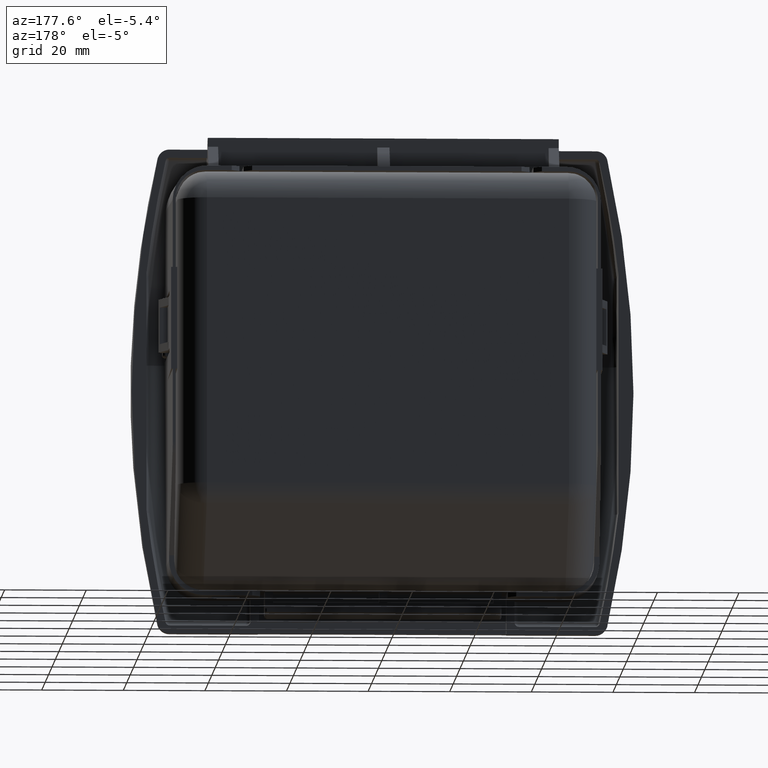
[diagram: clean part render]
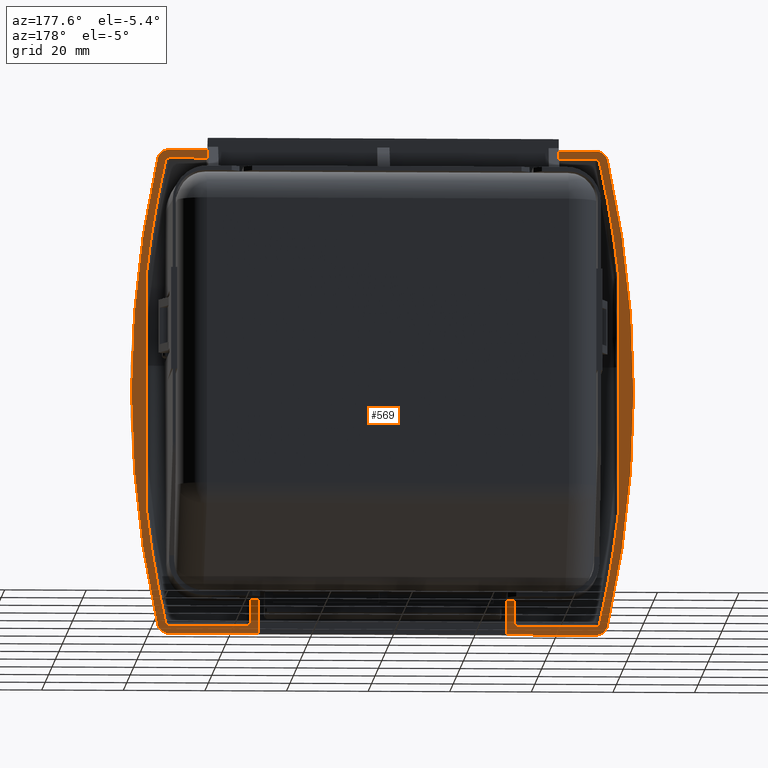
[diagram: same view with one face highlighted and labeled with its STEP entity id]
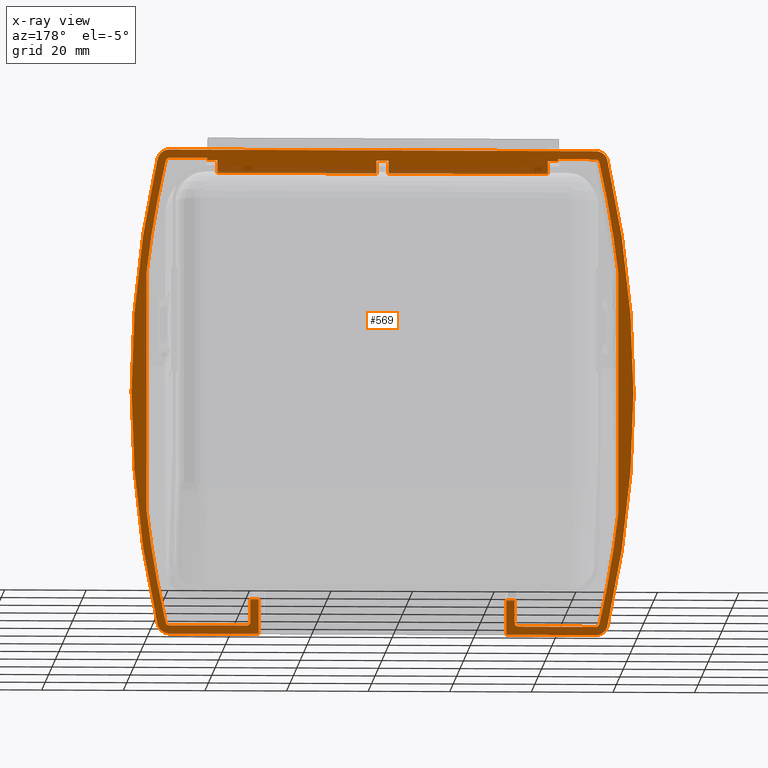
[diagram: x-ray of the same camera — body ghosted, the highlighted face saturated]
A machine part, auxiliary view. The second image highlights one B-rep face of the part: STEP entity #569.
The next image is the same camera in x-ray: the body ghosted, the highlighted face saturated — about 12% of this face is hidden behind the body in this view.
In plain terms, the highlighted planar face has unit normal (0, 1, 0).
Its self-contained STEP definition (entity closure, byte-faithful):
#569=ADVANCED_FACE('',(#5068),#5067,.T.);
#5067=PLANE('',#11109);
#5068=FACE_OUTER_BOUND('',#11110,.T.);
#11106=CARTESIAN_POINT('',(-2.76599449003E+002,0.00000000000E+000,-6.95000000000E+001));
#11107=DIRECTION('',(0.00000000000E+000,1.00000000000E+000,0.00000000000E+000));
#11108=DIRECTION('',(0.00000000000E+000,-0.00000000000E+000,1.00000000000E+000));
#11109=AXIS2_PLACEMENT_3D('',#11106,#11107,#11108);
#11110=EDGE_LOOP('',(#17176,#17177,#17178,#17179,#17180,#17181,#17182,#17183,#17184,#17185,#17186,#17187,#17188,#17189,#17190,#17191,#17192,#17193,#17194,#17195,#17196,#17197,#17198,#17199,#17200,#17201,#17202,#17203,#17204,#17205,#17206,#17207,#17208,#17209,#17210,#17211,#17212,#17213,#17214,#17215,#17216,#17217,#17218,#17219,#17220,#17221));
#17176=ORIENTED_EDGE('',*,*,#19124,.T.);
#17177=ORIENTED_EDGE('',*,*,#19389,.T.);
#17178=ORIENTED_EDGE('',*,*,#19119,.F.);
#17179=ORIENTED_EDGE('',*,*,#19152,.T.);
#17180=ORIENTED_EDGE('',*,*,#19817,.F.);
#17181=ORIENTED_EDGE('',*,*,#19818,.F.);
#17182=ORIENTED_EDGE('',*,*,#19400,.T.);
#17183=ORIENTED_EDGE('',*,*,#19415,.F.);
#17184=ORIENTED_EDGE('',*,*,#19804,.F.);
#17185=ORIENTED_EDGE('',*,*,#19819,.T.);
#17186=ORIENTED_EDGE('',*,*,#19820,.F.);
#17187=ORIENTED_EDGE('',*,*,#19404,.T.);
#17188=ORIENTED_EDGE('',*,*,#19782,.F.);
#17189=ORIENTED_EDGE('',*,*,#19369,.T.);
#17190=ORIENTED_EDGE('',*,*,#19780,.F.);
#17191=ORIENTED_EDGE('',*,*,#19783,.F.);
#17192=ORIENTED_EDGE('',*,*,#19289,.F.);
#17193=ORIENTED_EDGE('',*,*,#19388,.T.);
#17194=ORIENTED_EDGE('',*,*,#19784,.F.);
#17195=ORIENTED_EDGE('',*,*,#19395,.T.);
#17196=ORIENTED_EDGE('',*,*,#19800,.F.);
#17197=ORIENTED_EDGE('',*,*,#19791,.T.);
#17198=ORIENTED_EDGE('',*,*,#19786,.T.);
#17199=ORIENTED_EDGE('',*,*,#19531,.F.);
#17200=ORIENTED_EDGE('',*,*,#19509,.T.);
#17201=ORIENTED_EDGE('',*,*,#19529,.F.);
#17202=ORIENTED_EDGE('',*,*,#19821,.T.);
#17203=ORIENTED_EDGE('',*,*,#19464,.F.);
#17204=ORIENTED_EDGE('',*,*,#19680,.T.);
#17205=ORIENTED_EDGE('',*,*,#19822,.T.);
#17206=ORIENTED_EDGE('',*,*,#19823,.T.);
#17207=ORIENTED_EDGE('',*,*,#19711,.F.);
#17208=ORIENTED_EDGE('',*,*,#19824,.T.);
#17209=ORIENTED_EDGE('',*,*,#19522,.F.);
#17210=ORIENTED_EDGE('',*,*,#19500,.T.);
#17211=ORIENTED_EDGE('',*,*,#19739,.F.);
#17212=ORIENTED_EDGE('',*,*,#19504,.T.);
#17213=ORIENTED_EDGE('',*,*,#19758,.T.);
#17214=ORIENTED_EDGE('',*,*,#19525,.F.);
#17215=ORIENTED_EDGE('',*,*,#19757,.T.);
#17216=ORIENTED_EDGE('',*,*,#19761,.T.);
#17217=ORIENTED_EDGE('',*,*,#19563,.F.);
#17218=ORIENTED_EDGE('',*,*,#19554,.T.);
#17219=ORIENTED_EDGE('',*,*,#19471,.F.);
#17220=ORIENTED_EDGE('',*,*,#19557,.F.);
#17221=ORIENTED_EDGE('',*,*,#19825,.T.);
#19119=EDGE_CURVE('',#23761,#23768,#23769,.T.);
#19124=EDGE_CURVE('',#23802,#23795,#23803,.T.);
#19152=EDGE_CURVE('',#23761,#23992,#23993,.T.);
#19289=EDGE_CURVE('',#24896,#24903,#24904,.T.);
#19369=EDGE_CURVE('',#25442,#25443,#25444,.T.);
#19388=EDGE_CURVE('',#24896,#25563,#25570,.T.);
#19389=EDGE_CURVE('',#23795,#23768,#25576,.T.);
#19395=EDGE_CURVE('',#25617,#25610,#25618,.T.);
#19400=EDGE_CURVE('',#25631,#25645,#25652,.T.);
#19404=EDGE_CURVE('',#25659,#25673,#25680,.T.);
#19415=EDGE_CURVE('',#25745,#25645,#25752,.T.);
#19464=EDGE_CURVE('',#26064,#26071,#26072,.T.);
#19471=EDGE_CURVE('',#26112,#26119,#26120,.T.);
#19500=EDGE_CURVE('',#26317,#26318,#26319,.T.);
#19504=EDGE_CURVE('',#26345,#26337,#26346,.T.);
#19509=EDGE_CURVE('',#26379,#26372,#26380,.T.);
#19522=EDGE_CURVE('',#26317,#26462,#26463,.T.);
#19525=EDGE_CURVE('',#26475,#26482,#26483,.T.);
#19529=EDGE_CURVE('',#26503,#26372,#26510,.T.);
#19531=EDGE_CURVE('',#26379,#26522,#26523,.T.);
#19554=EDGE_CURVE('',#26674,#26119,#26675,.T.);
#19557=EDGE_CURVE('',#26687,#26112,#26694,.T.);
#19563=EDGE_CURVE('',#26674,#26732,#26733,.T.);
#19680=EDGE_CURVE('',#26064,#27506,#27513,.T.);
#19711=EDGE_CURVE('',#27712,#27713,#27714,.T.);
#19739=EDGE_CURVE('',#26345,#26318,#27892,.T.);
#19757=EDGE_CURVE('',#26475,#28000,#28007,.T.);
#19758=EDGE_CURVE('',#26337,#26482,#28013,.T.);
#19761=EDGE_CURVE('',#28000,#26732,#28032,.T.);
#19780=EDGE_CURVE('',#28155,#25443,#28156,.T.);
#19782=EDGE_CURVE('',#25442,#25673,#28168,.T.);
#19783=EDGE_CURVE('',#24903,#28155,#28174,.T.);
#19784=EDGE_CURVE('',#25617,#25563,#28180,.T.);
#19786=EDGE_CURVE('',#28192,#26522,#28193,.T.);
#19791=EDGE_CURVE('',#28225,#28192,#28226,.T.);
#19800=EDGE_CURVE('',#28225,#25610,#28283,.T.);
#19804=EDGE_CURVE('',#28303,#25745,#28310,.T.);
#19817=EDGE_CURVE('',#28393,#23992,#28394,.T.);
#19818=EDGE_CURVE('',#25631,#28393,#28400,.T.);
#19819=EDGE_CURVE('',#28303,#28406,#28407,.T.);
#19820=EDGE_CURVE('',#25659,#28406,#28413,.T.);
#19821=EDGE_CURVE('',#26503,#26071,#28419,.T.);
#19822=EDGE_CURVE('',#27506,#28425,#28426,.T.);
#19823=EDGE_CURVE('',#28425,#27713,#28432,.T.);
#19824=EDGE_CURVE('',#27712,#26462,#28438,.T.);
#19825=EDGE_CURVE('',#26687,#23802,#28444,.T.);
#23761=VERTEX_POINT('',#34269);
#23768=VERTEX_POINT('',#34273);
#23769=LINE('',#34274,#34275);
#23795=VERTEX_POINT('',#34290);
#23802=VERTEX_POINT('',#34295);
#23803=LINE('',#34296,#34297);
#23992=VERTEX_POINT('',#34405);
#23993=LINE('',#34406,#34407);
#24896=VERTEX_POINT('',#34906);
#24903=VERTEX_POINT('',#34910);
#24904=LINE('',#34911,#34912);
#25442=VERTEX_POINT('',#35238);
#25443=VERTEX_POINT('',#35239);
#25444=CIRCLE('',#35243,1.00000000000E+000);
#25563=VERTEX_POINT('',#35323);
#25570=(BOUNDED_CURVE() B_SPLINE_CURVE(2,(#35327,#35328,#35329),.UNSPECIFIED.,.F.,.F.) B_SPLINE_CURVE_WITH_KNOTS((3,3),(4.71238898038E+000,5.94040941946E+000),.UNSPECIFIED.) CURVE() GEOMETRIC_REPRESENTATION_ITEM() RATIONAL_B_SPLINE_CURVE((1.00000000000E+000,8.17344108997E-001,1.00000000000E+000)) REPRESENTATION_ITEM('') );
#25576=LINE('',#35330,#35331);
#25610=VERTEX_POINT('',#35352);
#25617=VERTEX_POINT('',#35381);
#25618=(BOUNDED_CURVE() B_SPLINE_CURVE(3,(#35382,#35383,#35384,#35385,#35386,#35387,#35388,#35389,#35390,#35391,#35392,#35393),.UNSPECIFIED.,.F.,.F.) B_SPLINE_CURVE_WITH_KNOTS((4,2,2,2,2,4),(0.00000000000E+000,8.44537996456E-004,1.26680699468E-003,1.68907599291E-003,2.53361398937E-003,3.37815198582E-003),.UNSPECIFIED.) CURVE() GEOMETRIC_REPRESENTATION_ITEM() RATIONAL_B_SPLINE_CURVE((1.00000000000E+000,1.00000000000E+000,1.00000000000E+000,1.00000000000E+000,1.00000000000E+000,1.00000000000E+000,1.00000000000E+000,1.00000000000E+000,1.00000000000E+000,1.00000000000E+000,1.00000000000E+000,1.00000000000E+000)) REPRESENTATION_ITEM('') );
#25631=VERTEX_POINT('',#35407);
#25645=VERTEX_POINT('',#35416);
#25652=CIRCLE('',#35423,1.00000000000E+000);
#25659=VERTEX_POINT('',#35425);
#25673=VERTEX_POINT('',#35434);
#25680=CIRCLE('',#35441,1.00000000000E+000);
#25745=VERTEX_POINT('',#35483);
#25752=CIRCLE('',#35490,2.58000000000E+002);
#26064=VERTEX_POINT('',#35760);
#26071=VERTEX_POINT('',#35764);
#26072=(BOUNDED_CURVE() B_SPLINE_CURVE(2,(#35765,#35766,#35767),.UNSPECIFIED.,.F.,.F.) B_SPLINE_CURVE_WITH_KNOTS((3,3),(4.71238898038E+000,5.94040941946E+000),.UNSPECIFIED.) CURVE() GEOMETRIC_REPRESENTATION_ITEM() RATIONAL_B_SPLINE_CURVE((1.00000000000E+000,8.17344108997E-001,1.00000000000E+000)) REPRESENTATION_ITEM('') );
#26112=VERTEX_POINT('',#35789);
#26119=VERTEX_POINT('',#35794);
#26120=LINE('',#35795,#35796);
#26317=VERTEX_POINT('',#35954);
#26318=VERTEX_POINT('',#35955);
#26319=CIRCLE('',#35959,2.58000000000E+002);
#26337=VERTEX_POINT('',#35966);
#26345=VERTEX_POINT('',#35971);
#26346=LINE('',#35972,#35973);
#26372=VERTEX_POINT('',#35987);
#26379=VERTEX_POINT('',#36016);
#26380=CIRCLE('',#36020,2.60000344491E+002);
#26462=VERTEX_POINT('',#36084);
#26463=CIRCLE('',#36088,1.00000000000E+000);
#26475=VERTEX_POINT('',#36092);
#26482=VERTEX_POINT('',#36096);
#26483=CIRCLE('',#36100,1.00000000000E+000);
#26503=VERTEX_POINT('',#36110);
#26510=(BOUNDED_CURVE() B_SPLINE_CURVE(3,(#36123,#36124,#36125,#36126,#36127,#36128,#36129,#36130,#36131,#36132,#36133,#36134),.UNSPECIFIED.,.F.,.F.) B_SPLINE_CURVE_WITH_KNOTS((4,2,2,2,2,4),(0.00000000000E+000,8.44537996456E-004,1.26680699468E-003,1.68907599291E-003,2.53361398937E-003,3.37815198582E-003),.UNSPECIFIED.) CURVE() GEOMETRIC_REPRESENTATION_ITEM() RATIONAL_B_SPLINE_CURVE((1.00000000000E+000,1.00000000000E+000,1.00000000000E+000,1.00000000000E+000,1.00000000000E+000,1.00000000000E+000,1.00000000000E+000,1.00000000000E+000,1.00000000000E+000,1.00000000000E+000,1.00000000000E+000,1.00000000000E+000)) REPRESENTATION_ITEM('') );
#26522=VERTEX_POINT('',#36139);
#26523=(BOUNDED_CURVE() B_SPLINE_CURVE(3,(#36140,#36141,#36142,#36143,#36144,#36145,#36146,#36147,#36148,#36149,#36150,#36151),.UNSPECIFIED.,.F.,.F.) B_SPLINE_CURVE_WITH_KNOTS((4,2,2,2,2,4),(0.00000000000E+000,8.44537994270E-004,1.26680699141E-003,1.68907598854E-003,2.53361398281E-003,3.37815197708E-003),.UNSPECIFIED.) CURVE() GEOMETRIC_REPRESENTATION_ITEM() RATIONAL_B_SPLINE_CURVE((1.00000000000E+000,1.00000000000E+000,1.00000000000E+000,1.00000000000E+000,1.00000000000E+000,1.00000000000E+000,1.00000000000E+000,1.00000000000E+000,1.00000000000E+000,1.00000000000E+000,1.00000000000E+000,1.00000000000E+000)) REPRESENTATION_ITEM('') );
#26674=VERTEX_POINT('',#36273);
#26675=LINE('',#36274,#36275);
#26687=VERTEX_POINT('',#36280);
#26694=LINE('',#36284,#36285);
#26732=VERTEX_POINT('',#36304);
#26733=LINE('',#36305,#36306);
#27506=VERTEX_POINT('',#36733);
#27513=LINE('',#36737,#36738);
#27712=VERTEX_POINT('',#36846);
#27713=VERTEX_POINT('',#36847);
#27714=CIRCLE('',#36851,1.00000000000E+000);
#27892=CIRCLE('',#36965,1.00000000000E+000);
#28000=VERTEX_POINT('',#37021);
#28007=LINE('',#37025,#37026);
#28013=CIRCLE('',#37031,2.58000000000E+002);
#28032=LINE('',#37040,#37041);
#28155=VERTEX_POINT('',#37231);
#28156=LINE('',#37232,#37233);
#28168=LINE('',#37238,#37239);
#28174=LINE('',#37241,#37242);
#28180=LINE('',#37244,#37245);
#28192=VERTEX_POINT('',#37250);
#28193=LINE('',#37251,#37252);
#28225=VERTEX_POINT('',#37295);
#28226=(BOUNDED_CURVE() B_SPLINE_CURVE(3,(#37296,#37297,#37298,#37299,#37300,#37301,#37302,#37303,#37304,#37305,#37306,#37307),.UNSPECIFIED.,.F.,.F.) B_SPLINE_CURVE_WITH_KNOTS((4,2,2,2,2,4),(0.00000000000E+000,8.44537994270E-004,1.26680699141E-003,1.68907598854E-003,2.53361398281E-003,3.37815197708E-003),.UNSPECIFIED.) CURVE() GEOMETRIC_REPRESENTATION_ITEM() RATIONAL_B_SPLINE_CURVE((1.00000000000E+000,1.00000000000E+000,1.00000000000E+000,1.00000000000E+000,1.00000000000E+000,1.00000000000E+000,1.00000000000E+000,1.00000000000E+000,1.00000000000E+000,1.00000000000E+000,1.00000000000E+000,1.00000000000E+000)) REPRESENTATION_ITEM('') );
#28283=CIRCLE('',#37350,2.60000344491E+002);
#28303=VERTEX_POINT('',#37360);
#28310=LINE('',#37364,#37365);
#28393=VERTEX_POINT('',#37420);
#28394=LINE('',#37421,#37422);
#28400=LINE('',#37424,#37425);
#28406=VERTEX_POINT('',#37427);
#28407=CIRCLE('',#37431,1.00000000000E+000);
#28413=CIRCLE('',#37435,2.58000000000E+002);
#28419=LINE('',#37436,#37437);
#28425=VERTEX_POINT('',#37439);
#28426=LINE('',#37440,#37441);
#28432=LINE('',#37443,#37444);
#28438=LINE('',#37446,#37447);
#28444=LINE('',#37449,#37450);
#34269=CARTESIAN_POINT('',(-2.39000344491E+002,0.00000000000E+000,5.70000000000E+001));
#34273=CARTESIAN_POINT('',(-2.39000344491E+002,0.00000000000E+000,5.37999999995E+001));
#34274=CARTESIAN_POINT('',(-2.39000344491E+002,0.00000000000E+000,5.70000000000E+001));
#34275=VECTOR('',#34276,3.20000000051E+000);
#34276=DIRECTION('',(0.00000000000E+000,0.00000000000E+000,-1.00000000000E+000));
#34290=CARTESIAN_POINT('',(-2.00000344491E+002,0.00000000000E+000,5.37999999995E+001));
#34295=CARTESIAN_POINT('',(-2.00000344491E+002,0.00000000000E+000,5.70000000000E+001));
#34296=CARTESIAN_POINT('',(-2.00000344491E+002,0.00000000000E+000,5.70000000000E+001));
#34297=VECTOR('',#34298,3.20000000051E+000);
#34298=DIRECTION('',(0.00000000000E+000,0.00000000000E+000,-1.00000000000E+000));
#34405=CARTESIAN_POINT('',(-2.41500344491E+002,0.00000000000E+000,5.70000000000E+001));
#34406=CARTESIAN_POINT('',(-2.39000344491E+002,0.00000000000E+000,5.70000000000E+001));
#34407=VECTOR('',#34408,2.50000000001E+000);
#34408=DIRECTION('',(-1.00000000000E+000,0.00000000000E+000,0.00000000000E+000));
#34906=CARTESIAN_POINT('',(-2.28850344491E+002,0.00000000000E+000,-5.92174093665E+001));
#34910=CARTESIAN_POINT('',(-2.28850344491E+002,0.00000000000E+000,-5.11018789999E+001));
#34911=CARTESIAN_POINT('',(-2.28850344491E+002,0.00000000000E+000,-5.92174093665E+001));
#34912=VECTOR('',#34913,8.11553036661E+000);
#34913=DIRECTION('',(0.00000000000E+000,0.00000000000E+000,1.00000000000E+000));
#35238=CARTESIAN_POINT('',(-2.31850344491E+002,0.00000000000E+000,-5.74999999999E+001));
#35239=CARTESIAN_POINT('',(-2.30850344491E+002,0.00000000000E+000,-5.64999999999E+001));
#35240=CARTESIAN_POINT('',(-2.31850344491E+002,0.00000000000E+000,-5.64999999999E+001));
#35241=DIRECTION('',(-0.00000000000E+000,-1.00000000000E+000,0.00000000000E+000));
#35242=DIRECTION('',(-0.00000000000E+000,0.00000000000E+000,-1.00000000000E+000));
#35243=AXIS2_PLACEMENT_3D('',#35240,#35241,#35242);
#35323=CARTESIAN_POINT('',(-2.29049513655E+002,0.00000000000E+000,-5.95000000000E+001));
#35327=CARTESIAN_POINT('',(-2.28850344491E+002,0.00000000000E+000,-5.92174093665E+001));
#35328=CARTESIAN_POINT('',(-2.28850344491E+002,0.00000000000E+000,-5.94289130298E+001));
#35329=CARTESIAN_POINT('',(-2.29049513655E+002,0.00000000000E+000,-5.95000000000E+001));
#35330=CARTESIAN_POINT('',(-2.00000344491E+002,0.00000000000E+000,5.37999999995E+001));
#35331=VECTOR('',#35332,3.90000000000E+001);
#35332=DIRECTION('',(-1.00000000000E+000,0.00000000000E+000,0.00000000000E+000));
#35352=CARTESIAN_POINT('',(-2.53564586830E+002,0.00000000000E+000,-5.74906900402E+001));
#35381=CARTESIAN_POINT('',(-2.51050314390E+002,0.00000000000E+000,-5.95000000000E+001));
#35382=CARTESIAN_POINT('',(-2.51050314390E+002,0.00000000000E+000,-5.95000000000E+001));
#35383=CARTESIAN_POINT('',(-2.51334218168E+002,0.00000000000E+000,-5.94692397507E+001));
#35384=CARTESIAN_POINT('',(-2.51607051269E+002,-0.00000000000E+000,-5.93994813000E+001));
#35385=CARTESIAN_POINT('',(-2.52000075985E+002,-0.00000000000E+000,-5.92376887434E+001));
#35386=CARTESIAN_POINT('',(-2.52128555410E+002,0.00000000000E+000,-5.91737514205E+001));
#35387=CARTESIAN_POINT('',(-2.52371886051E+002,-0.00000000000E+000,-5.90303399792E+001));
#35388=CARTESIAN_POINT('',(-2.52487814338E+002,0.00000000000E+000,-5.89504950004E+001));
#35389=CARTESIAN_POINT('',(-2.52818467509E+002,-0.00000000000E+000,-5.86866549552E+001));
#35390=CARTESIAN_POINT('',(-2.53016278673E+002,0.00000000000E+000,-5.84766468683E+001));
#35391=CARTESIAN_POINT('',(-2.53340746318E+002,-0.00000000000E+000,-5.80165080845E+001));
#35392=CARTESIAN_POINT('',(-2.53471980094E+002,0.00000000000E+000,-5.77608226872E+001));
#35393=CARTESIAN_POINT('',(-2.53564586830E+002,0.00000000000E+000,-5.74906900402E+001));
#35407=CARTESIAN_POINT('',(-2.50712484731E+002,0.00000000000E+000,5.75000000000E+001));
#35416=CARTESIAN_POINT('',(-2.51688019691E+002,0.00000000000E+000,5.67198443580E+001));
#35420=CARTESIAN_POINT('',(-2.50712484731E+002,0.00000000000E+000,5.65000000000E+001));
#35421=DIRECTION('',(-0.00000000000E+000,-1.00000000000E+000,0.00000000000E+000));
#35422=DIRECTION('',(-0.00000000000E+000,0.00000000000E+000,-1.00000000000E+000));
#35423=AXIS2_PLACEMENT_3D('',#35420,#35421,#35422);
#35425=CARTESIAN_POINT('',(-2.51688019691E+002,0.00000000000E+000,-5.67198443579E+001));
#35434=CARTESIAN_POINT('',(-2.50712484731E+002,0.00000000000E+000,-5.74999999999E+001));
#35438=CARTESIAN_POINT('',(-2.50712484731E+002,0.00000000000E+000,-5.64999999999E+001));
#35439=DIRECTION('',(-0.00000000000E+000,-1.00000000000E+000,0.00000000000E+000));
#35440=DIRECTION('',(-0.00000000000E+000,0.00000000000E+000,-1.00000000000E+000));
#35441=AXIS2_PLACEMENT_3D('',#35438,#35439,#35440);
#35483=CARTESIAN_POINT('',(-2.56350344491E+002,0.00000000000E+000,2.91290384207E+001));
#35487=CARTESIAN_POINT('',(7.59996510169E-011,0.00000000000E+000,0.00000000000E+000));
#35488=DIRECTION('',(0.00000000000E+000,1.00000000000E+000,0.00000000000E+000));
#35489=DIRECTION('',(-0.00000000000E+000,0.00000000000E+000,-1.00000000000E+000));
#35490=AXIS2_PLACEMENT_3D('',#35487,#35488,#35489);
#35760=CARTESIAN_POINT('',(-1.68150344491E+002,0.00000000000E+000,-5.92174093665E+001));
#35764=CARTESIAN_POINT('',(-1.67951175326E+002,0.00000000000E+000,-5.95000000000E+001));
#35765=CARTESIAN_POINT('',(-1.68150344491E+002,0.00000000000E+000,-5.92174093665E+001));
#35766=CARTESIAN_POINT('',(-1.68150344491E+002,0.00000000000E+000,-5.94289130298E+001));
#35767=CARTESIAN_POINT('',(-1.67951175326E+002,0.00000000000E+000,-5.95000000000E+001));
#35789=CARTESIAN_POINT('',(-1.97000344491E+002,0.00000000000E+000,5.37999999995E+001));
#35794=CARTESIAN_POINT('',(-1.58000344491E+002,0.00000000000E+000,5.37999999995E+001));
#35795=CARTESIAN_POINT('',(-1.97000344491E+002,0.00000000000E+000,5.37999999995E+001));
#35796=VECTOR('',#35797,3.90000000000E+001);
#35797=DIRECTION('',(1.00000000000E+000,0.00000000000E+000,0.00000000000E+000));
#35954=CARTESIAN_POINT('',(-1.45312669291E+002,0.00000000000E+000,-5.67198443579E+001));
#35955=CARTESIAN_POINT('',(-1.40656763384E+002,0.00000000000E+000,-2.91854725697E+001));
#35956=CARTESIAN_POINT('',(-3.97000688982E+002,0.00000000000E+000,0.00000000000E+000));
#35957=DIRECTION('',(0.00000000000E+000,-1.00000000000E+000,0.00000000000E+000));
#35958=DIRECTION('',(-0.00000000000E+000,-0.00000000000E+000,-1.00000000000E+000));
#35959=AXIS2_PLACEMENT_3D('',#35956,#35957,#35958);
#35966=CARTESIAN_POINT('',(-1.40650344491E+002,0.00000000000E+000,2.91290384207E+001));
#35971=CARTESIAN_POINT('',(-1.40650344491E+002,0.00000000000E+000,-2.90723505830E+001));
#35972=CARTESIAN_POINT('',(-1.40650344491E+002,0.00000000000E+000,-2.90723505830E+001));
#35973=VECTOR('',#35974,5.82013890038E+001);
#35974=DIRECTION('',(4.10786449982E-012,0.00000000000E+000,1.00000000000E+000));
#35987=CARTESIAN_POINT('',(-1.43436102152E+002,0.00000000000E+000,-5.74906900402E+001));
#36016=CARTESIAN_POINT('',(-1.43436102152E+002,0.00000000000E+000,5.74906900401E+001));
#36017=CARTESIAN_POINT('',(-3.97000688982E+002,0.00000000000E+000,0.00000000000E+000));
#36018=DIRECTION('',(-0.00000000000E+000,1.00000000000E+000,0.00000000000E+000));
#36019=DIRECTION('',(-0.00000000000E+000,-0.00000000000E+000,1.00000000000E+000));
#36020=AXIS2_PLACEMENT_3D('',#36017,#36018,#36019);
#36084=CARTESIAN_POINT('',(-1.46288204251E+002,0.00000000000E+000,-5.74999999999E+001));
#36085=CARTESIAN_POINT('',(-1.46288204251E+002,0.00000000000E+000,-5.64999999999E+001));
#36086=DIRECTION('',(-0.00000000000E+000,1.00000000000E+000,0.00000000000E+000));
#36087=DIRECTION('',(-0.00000000000E+000,-0.00000000000E+000,-1.00000000000E+000));
#36088=AXIS2_PLACEMENT_3D('',#36085,#36086,#36087);
#36092=CARTESIAN_POINT('',(-1.46288204251E+002,0.00000000000E+000,5.75000000000E+001));
#36096=CARTESIAN_POINT('',(-1.45312669291E+002,0.00000000000E+000,5.67198443580E+001));
#36097=CARTESIAN_POINT('',(-1.46288204251E+002,0.00000000000E+000,5.65000000000E+001));
#36098=DIRECTION('',(-0.00000000000E+000,1.00000000000E+000,0.00000000000E+000));
#36099=DIRECTION('',(-0.00000000000E+000,-0.00000000000E+000,-1.00000000000E+000));
#36100=AXIS2_PLACEMENT_3D('',#36097,#36098,#36099);
#36110=CARTESIAN_POINT('',(-1.45950374592E+002,0.00000000000E+000,-5.95000000000E+001));
#36123=CARTESIAN_POINT('',(-1.45950374592E+002,0.00000000000E+000,-5.95000000000E+001));
#36124=CARTESIAN_POINT('',(-1.45666470814E+002,0.00000000000E+000,-5.94692397507E+001));
#36125=CARTESIAN_POINT('',(-1.45393637713E+002,-0.00000000000E+000,-5.93994813000E+001));
#36126=CARTESIAN_POINT('',(-1.45000612997E+002,-0.00000000000E+000,-5.92376887434E+001));
#36127=CARTESIAN_POINT('',(-1.44872133572E+002,0.00000000000E+000,-5.91737514205E+001));
#36128=CARTESIAN_POINT('',(-1.44628802931E+002,-0.00000000000E+000,-5.90303399792E+001));
#36129=CARTESIAN_POINT('',(-1.44512874644E+002,0.00000000000E+000,-5.89504950004E+001));
#36130=CARTESIAN_POINT('',(-1.44182221473E+002,-0.00000000000E+000,-5.86866549552E+001));
#36131=CARTESIAN_POINT('',(-1.43984410309E+002,0.00000000000E+000,-5.84766468683E+001));
#36132=CARTESIAN_POINT('',(-1.43659942664E+002,-0.00000000000E+000,-5.80165080845E+001));
#36133=CARTESIAN_POINT('',(-1.43528708888E+002,0.00000000000E+000,-5.77608226872E+001));
#36134=CARTESIAN_POINT('',(-1.43436102152E+002,0.00000000000E+000,-5.74906900402E+001));
#36139=CARTESIAN_POINT('',(-1.45950374593E+002,0.00000000000E+000,5.95000000000E+001));
#36140=CARTESIAN_POINT('',(-1.43436102152E+002,0.00000000000E+000,5.74906900401E+001));
#36141=CARTESIAN_POINT('',(-1.43528708828E+002,0.00000000000E+000,5.77608225119E+001));
#36142=CARTESIAN_POINT('',(-1.43656912574E+002,-0.00000000000E+000,5.80115573143E+001));
#36143=CARTESIAN_POINT('',(-1.43901388446E+002,-0.00000000000E+000,5.83592307374E+001));
#36144=CARTESIAN_POINT('',(-1.43992082933E+002,0.00000000000E+000,5.84704487818E+001));
#36145=CARTESIAN_POINT('',(-1.44185621107E+002,-0.00000000000E+000,5.86761661042E+001));
#36146=CARTESIAN_POINT('',(-1.44289064030E+002,0.00000000000E+000,5.87716341621E+001));
#36147=CARTESIAN_POINT('',(-1.44619321923E+002,-0.00000000000E+000,5.90359688298E+001));
#36148=CARTESIAN_POINT('',(-1.44867779942E+002,0.00000000000E+000,5.91826019176E+001));
#36149=CARTESIAN_POINT('',(-1.45388140643E+002,-0.00000000000E+000,5.93976174916E+001));
#36150=CARTESIAN_POINT('',(-1.45666470632E+002,0.00000000000E+000,5.94692397310E+001));
#36151=CARTESIAN_POINT('',(-1.45950374593E+002,0.00000000000E+000,5.95000000000E+001));
#36273=CARTESIAN_POINT('',(-1.58000344491E+002,0.00000000000E+000,5.70000000000E+001));
#36274=CARTESIAN_POINT('',(-1.58000344491E+002,0.00000000000E+000,5.70000000000E+001));
#36275=VECTOR('',#36276,3.20000000051E+000);
#36276=DIRECTION('',(0.00000000000E+000,0.00000000000E+000,-1.00000000000E+000));
#36280=CARTESIAN_POINT('',(-1.97000344491E+002,0.00000000000E+000,5.70000000000E+001));
#36284=CARTESIAN_POINT('',(-1.97000344491E+002,0.00000000000E+000,5.70000000000E+001));
#36285=VECTOR('',#36286,3.20000000051E+000);
#36286=DIRECTION('',(0.00000000000E+000,0.00000000000E+000,-1.00000000000E+000));
#36304=CARTESIAN_POINT('',(-1.55500344491E+002,0.00000000000E+000,5.70000000000E+001));
#36305=CARTESIAN_POINT('',(-1.58000344491E+002,0.00000000000E+000,5.70000000000E+001));
#36306=VECTOR('',#36307,2.50000000001E+000);
#36307=DIRECTION('',(1.00000000000E+000,0.00000000000E+000,0.00000000000E+000));
#36733=CARTESIAN_POINT('',(-1.68150344491E+002,0.00000000000E+000,-5.11018789999E+001));
#36737=CARTESIAN_POINT('',(-1.68150344491E+002,0.00000000000E+000,-5.92174093665E+001));
#36738=VECTOR('',#36739,8.11553036661E+000);
#36739=DIRECTION('',(0.00000000000E+000,0.00000000000E+000,1.00000000000E+000));
#36846=CARTESIAN_POINT('',(-1.65150344491E+002,0.00000000000E+000,-5.74999999999E+001));
#36847=CARTESIAN_POINT('',(-1.66150344491E+002,0.00000000000E+000,-5.64999999999E+001));
#36848=CARTESIAN_POINT('',(-1.65150344491E+002,0.00000000000E+000,-5.64999999999E+001));
#36849=DIRECTION('',(-0.00000000000E+000,1.00000000000E+000,0.00000000000E+000));
#36850=DIRECTION('',(-0.00000000000E+000,-0.00000000000E+000,-1.00000000000E+000));
#36851=AXIS2_PLACEMENT_3D('',#36848,#36849,#36850);
#36962=CARTESIAN_POINT('',(-1.41650344491E+002,0.00000000000E+000,-2.90723505830E+001));
#36963=DIRECTION('',(-0.00000000000E+000,1.00000000000E+000,0.00000000000E+000));
#36964=DIRECTION('',(-0.00000000000E+000,-0.00000000000E+000,-1.00000000000E+000));
#36965=AXIS2_PLACEMENT_3D('',#36962,#36963,#36964);
#37021=CARTESIAN_POINT('',(-1.55500344491E+002,0.00000000000E+000,5.75000000000E+001));
#37025=CARTESIAN_POINT('',(-1.46288204251E+002,0.00000000000E+000,5.75000000000E+001));
#37026=VECTOR('',#37027,9.21214023986E+000);
#37027=DIRECTION('',(-1.00000000000E+000,0.00000000000E+000,0.00000000000E+000));
#37028=CARTESIAN_POINT('',(-3.97000688982E+002,0.00000000000E+000,0.00000000000E+000));
#37029=DIRECTION('',(0.00000000000E+000,-1.00000000000E+000,0.00000000000E+000));
#37030=DIRECTION('',(-0.00000000000E+000,-0.00000000000E+000,-1.00000000000E+000));
#37031=AXIS2_PLACEMENT_3D('',#37028,#37029,#37030);
#37040=CARTESIAN_POINT('',(-1.55500344491E+002,0.00000000000E+000,5.75000000000E+001));
#37041=VECTOR('',#37042,5.00000000000E-001);
#37042=DIRECTION('',(4.54747350886E-013,0.00000000000E+000,-1.00000000000E+000));
#37231=CARTESIAN_POINT('',(-2.30850344491E+002,1.72556635647E-010,-5.11018789999E+001));
#37232=CARTESIAN_POINT('',(-2.30850344491E+002,0.00000000000E+000,-5.11018789999E+001));
#37233=VECTOR('',#37234,5.39812099999E+000);
#37234=DIRECTION('',(0.00000000000E+000,0.00000000000E+000,-1.00000000000E+000));
#37238=CARTESIAN_POINT('',(-2.31850344491E+002,0.00000000000E+000,-5.74999999999E+001));
#37239=VECTOR('',#37240,1.88621402399E+001);
#37240=DIRECTION('',(-1.00000000000E+000,0.00000000000E+000,0.00000000000E+000));
#37241=CARTESIAN_POINT('',(-2.28850344491E+002,1.72556635647E-010,-5.11018789999E+001));
#37242=VECTOR('',#37243,2.00000000004E+000);
#37243=DIRECTION('',(-1.00000000000E+000,0.00000000000E+000,0.00000000000E+000));
#37244=CARTESIAN_POINT('',(-2.51050314390E+002,0.00000000000E+000,-5.95000000000E+001));
#37245=VECTOR('',#37246,2.20008007341E+001);
#37246=DIRECTION('',(1.00000000000E+000,0.00000000000E+000,0.00000000000E+000));
#37250=CARTESIAN_POINT('',(-2.51050314389E+002,0.00000000000E+000,5.95000000000E+001));
#37251=CARTESIAN_POINT('',(-2.51050314389E+002,0.00000000000E+000,5.95000000000E+001));
#37252=VECTOR('',#37253,1.05099939796E+002);
#37253=DIRECTION('',(1.00000000000E+000,0.00000000000E+000,6.76063884659E-017));
#37295=CARTESIAN_POINT('',(-2.53564586830E+002,0.00000000000E+000,5.74906900401E+001));
#37296=CARTESIAN_POINT('',(-2.53564586830E+002,0.00000000000E+000,5.74906900401E+001));
#37297=CARTESIAN_POINT('',(-2.53471980154E+002,-0.00000000000E+000,5.77608225119E+001));
#37298=CARTESIAN_POINT('',(-2.53343776408E+002,-0.00000000000E+000,5.80115573143E+001));
#37299=CARTESIAN_POINT('',(-2.53099300536E+002,-0.00000000000E+000,5.83592307374E+001));
#37300=CARTESIAN_POINT('',(-2.53008606048E+002,0.00000000000E+000,5.84704487818E+001));
#37301=CARTESIAN_POINT('',(-2.52815067875E+002,-0.00000000000E+000,5.86761661042E+001));
#37302=CARTESIAN_POINT('',(-2.52711624952E+002,0.00000000000E+000,5.87716341621E+001));
#37303=CARTESIAN_POINT('',(-2.52381367059E+002,-0.00000000000E+000,5.90359688298E+001));
#37304=CARTESIAN_POINT('',(-2.52132909040E+002,0.00000000000E+000,5.91826019176E+001));
#37305=CARTESIAN_POINT('',(-2.51612548339E+002,-0.00000000000E+000,5.93976174916E+001));
#37306=CARTESIAN_POINT('',(-2.51334218350E+002,-0.00000000000E+000,5.94692397310E+001));
#37307=CARTESIAN_POINT('',(-2.51050314389E+002,0.00000000000E+000,5.95000000000E+001));
#37347=CARTESIAN_POINT('',(0.00000000000E+000,0.00000000000E+000,0.00000000000E+000));
#37348=DIRECTION('',(0.00000000000E+000,-1.00000000000E+000,-0.00000000000E+000));
#37349=DIRECTION('',(-0.00000000000E+000,-0.00000000000E+000,1.00000000000E+000));
#37350=AXIS2_PLACEMENT_3D('',#37347,#37348,#37349);
#37360=CARTESIAN_POINT('',(-2.56350344491E+002,0.00000000000E+000,-2.90723505830E+001));
#37364=CARTESIAN_POINT('',(-2.56350344491E+002,0.00000000000E+000,-2.90723505830E+001));
#37365=VECTOR('',#37366,5.82013890038E+001);
#37366=DIRECTION('',(-4.10786449982E-012,0.00000000000E+000,1.00000000000E+000));
#37420=CARTESIAN_POINT('',(-2.41500344491E+002,0.00000000000E+000,5.75000000000E+001));
#37421=CARTESIAN_POINT('',(-2.41500344491E+002,0.00000000000E+000,5.75000000000E+001));
#37422=VECTOR('',#37423,5.00000000000E-001);
#37423=DIRECTION('',(-4.54747350886E-013,0.00000000000E+000,-1.00000000000E+000));
#37424=CARTESIAN_POINT('',(-2.50712484731E+002,0.00000000000E+000,5.75000000000E+001));
#37425=VECTOR('',#37426,9.21214023986E+000);
#37426=DIRECTION('',(1.00000000000E+000,0.00000000000E+000,0.00000000000E+000));
#37427=CARTESIAN_POINT('',(-2.56343925598E+002,0.00000000000E+000,-2.91854725697E+001));
#37428=CARTESIAN_POINT('',(-2.55350344491E+002,0.00000000000E+000,-2.90723505830E+001));
#37429=DIRECTION('',(-0.00000000000E+000,-1.00000000000E+000,0.00000000000E+000));
#37430=DIRECTION('',(-0.00000000000E+000,0.00000000000E+000,-1.00000000000E+000));
#37431=AXIS2_PLACEMENT_3D('',#37428,#37429,#37430);
#37432=CARTESIAN_POINT('',(7.59996510169E-011,0.00000000000E+000,0.00000000000E+000));
#37433=DIRECTION('',(0.00000000000E+000,1.00000000000E+000,0.00000000000E+000));
#37434=DIRECTION('',(-0.00000000000E+000,0.00000000000E+000,-1.00000000000E+000));
#37435=AXIS2_PLACEMENT_3D('',#37432,#37433,#37434);
#37436=CARTESIAN_POINT('',(-1.45950374592E+002,0.00000000000E+000,-5.95000000000E+001));
#37437=VECTOR('',#37438,2.20008007341E+001);
#37438=DIRECTION('',(-1.00000000000E+000,0.00000000000E+000,0.00000000000E+000));
#37439=CARTESIAN_POINT('',(-1.66150344491E+002,1.72556635647E-010,-5.11018789999E+001));
#37440=CARTESIAN_POINT('',(-1.68150344491E+002,1.72556635647E-010,-5.11018789999E+001));
#37441=VECTOR('',#37442,2.00000000004E+000);
#37442=DIRECTION('',(1.00000000000E+000,0.00000000000E+000,0.00000000000E+000));
#37443=CARTESIAN_POINT('',(-1.66150344491E+002,0.00000000000E+000,-5.11018789999E+001));
#37444=VECTOR('',#37445,5.39812099999E+000);
#37445=DIRECTION('',(0.00000000000E+000,0.00000000000E+000,-1.00000000000E+000));
#37446=CARTESIAN_POINT('',(-1.65150344491E+002,0.00000000000E+000,-5.74999999999E+001));
#37447=VECTOR('',#37448,1.88621402399E+001);
#37448=DIRECTION('',(1.00000000000E+000,0.00000000000E+000,0.00000000000E+000));
#37449=CARTESIAN_POINT('',(-1.97000344491E+002,0.00000000000E+000,5.70000000000E+001));
#37450=VECTOR('',#37451,2.99999999995E+000);
#37451=DIRECTION('',(-1.00000000000E+000,0.00000000000E+000,0.00000000000E+000));